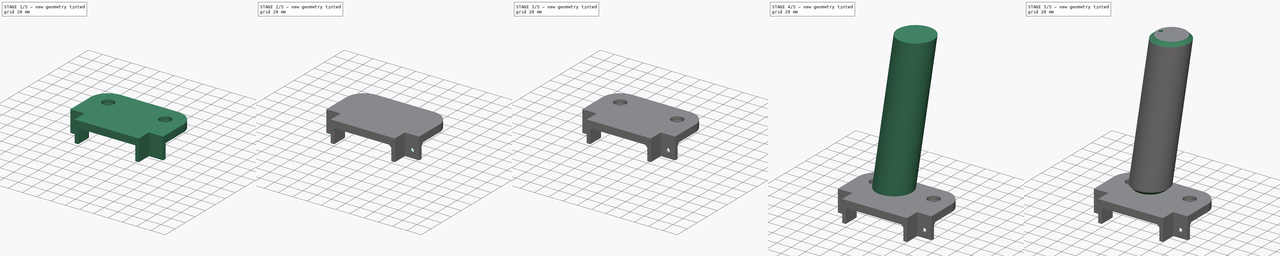
[diagram: build sequence overview — one tinted view per stage of 5, left to right]
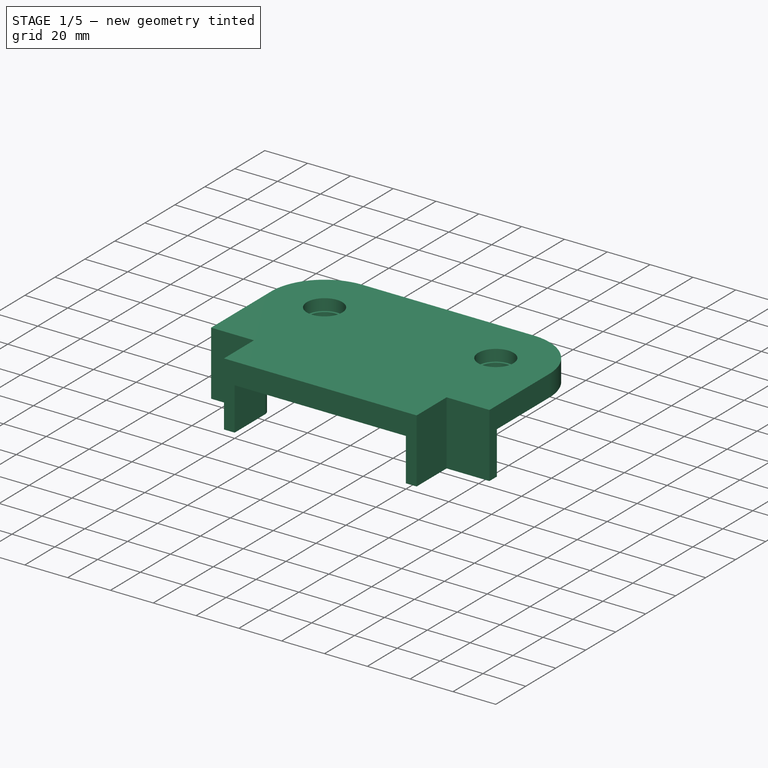
[diagram: stage 1 of 5 — iso view after this stage's code; geometry added in this stage tinted green]
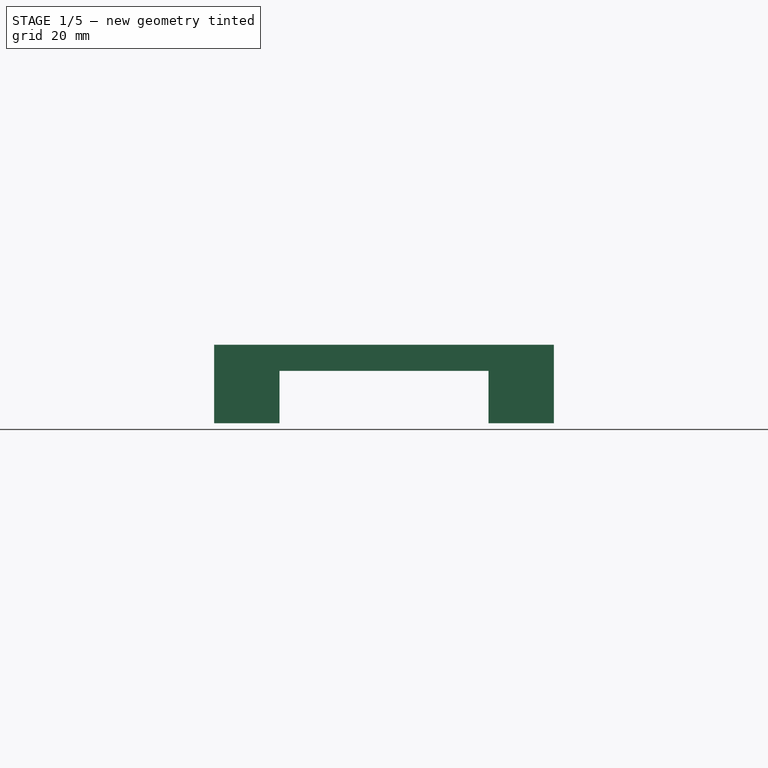
[diagram: stage 1 of 5 — front view after this stage's code; geometry added in this stage tinted green]
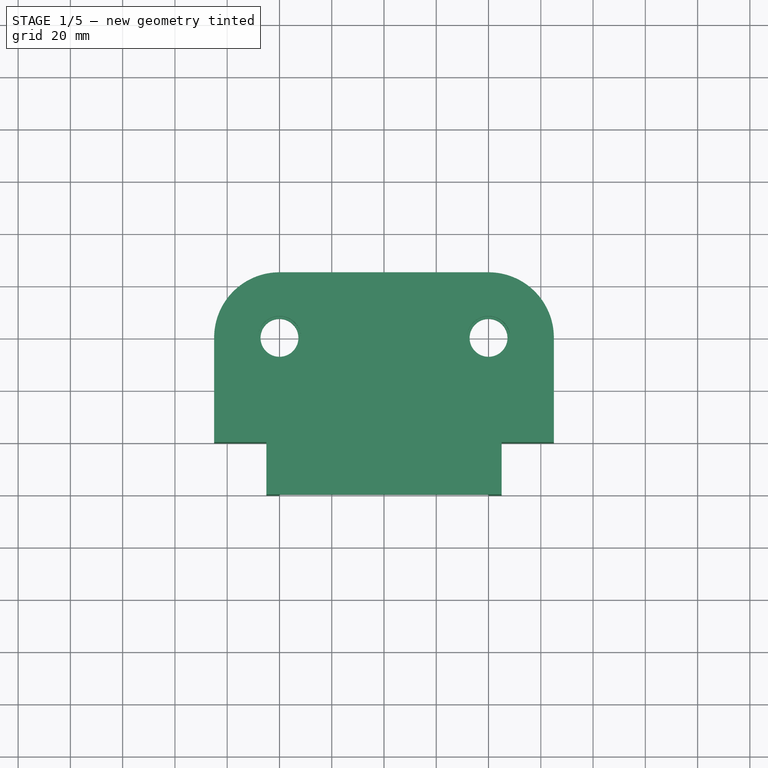
[diagram: stage 1 of 5 — top view after this stage's code; geometry added in this stage tinted green]
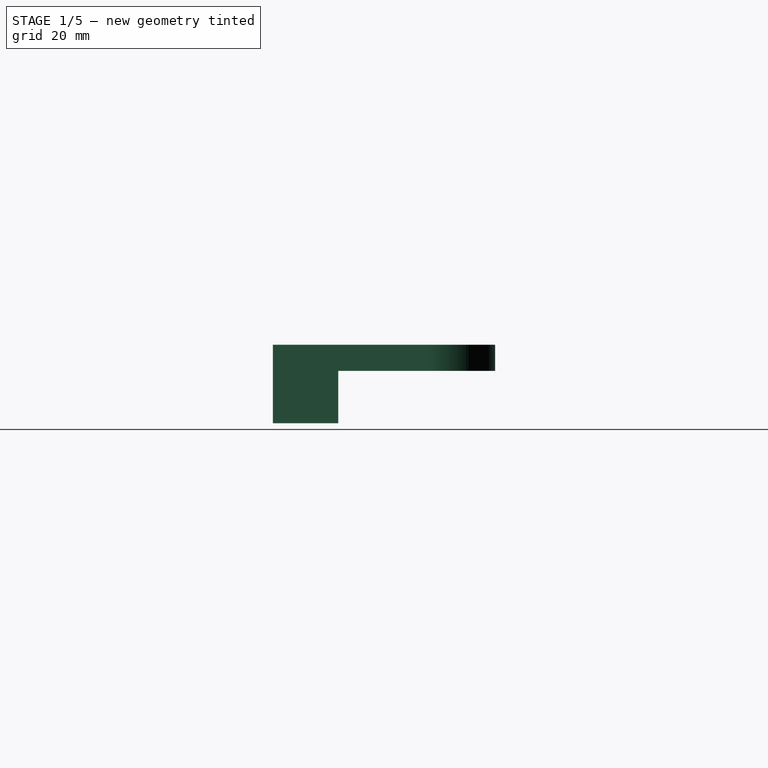
[diagram: stage 1 of 5 — right view after this stage's code; geometry added in this stage tinted green]
FCSTD DOCUMENT  (FreeCAD 0.19R24276 (Git))
Label: resin_shaker
License: All rights reserved
LicenseURL: http://en.wikipedia.org/wiki/All_rights_reserved
objects: Sketcher::SketchObject×15, PartDesign::Pad×6, PartDesign::Body×5, PartDesign::Hole×5, PartDesign::Chamfer×3, PartDesign::Pocket×2, PartDesign::FeatureBase×1
note: 53 computed .brp shape members not serialized (recipe doc carries the construction recipe); baked Part::Feature solids carry a one-line shape summary decoded from their .brp

FEATURE [Sketcher::SketchObject] Sketch008
  ExternalGeometry = -> [Chamfer001]
  FullyConstrained = false
  MapMode = 5
  Placement = pos=(0,0,-10) rot=(1,0,0;3.14159rad)
  Support = -> [Chamfer001]
  sketch-geometry (6):
    g0: ArcOfCircle CenterX=-40 CenterY=1.5e-15 CenterZ=0 NormalX=0 NormalY=0 NormalZ=1 AngleXU=0 Radius=6 StartAngle=2.24736 EndAngle=4.71239
    g1: ArcOfCircle CenterX=40 CenterY=0 CenterZ=0 NormalX=0 NormalY=0 NormalZ=1 AngleXU=0 Radius=6 StartAngle=4.71239 EndAngle=7.17742
    g2: LineSegment StartX=-40 StartY=-6 StartZ=0 EndX=40 EndY=-6 EndZ=0
    g3: ArcOfCircle CenterX=0 CenterY=32.1199 CenterZ=0 NormalX=0 NormalY=0 NormalZ=1 AngleXU=0 Radius=6 StartAngle=0.89423 EndAngle=2.24736
    g4: LineSegment StartX=-43.7567 StartY=4.67836 StartZ=0 EndX=-3.75672 EndY=36.7983 EndZ=0
    g5: LineSegment StartX=3.75672 StartY=36.7983 StartZ=0 EndX=43.7567 EndY=4.67836 EndZ=0
  constraints (13):
    c: Coincident(g0,g-3)
    c: Coincident(g1,g-4)
    c: Horizontal(g2)
    c: Tangent(g2,g0) = -1.5708
    c: Tangent(g2,g1) = -1.5708
    c: Diameter(g0) = 12
    c: PointOnObject(g3,g-2)
    c: Tangent(g5,g1) = 1.5708
    c: Tangent(g5,g3) = 1.5708
    c: Tangent(g4,g3) = 1.5708
    c: Tangent(g4,g0) = 1.5708
    c: Equal(g3,g1)
    c: Distance(g3,g1) = 51.3
FEATURE [PartDesign::Body] Body003  label="Side001"
  Group = -> [Sketch004,Pad002,Sketch005,Hole001,Sketch006,Pad003,Sketch007,Hole002,Chamfer001,Sketch008]
  Origin = -> Origin003
  Placement = pos=(0,0,220) rot=(0,1,0;3.14159rad)
  Tip = -> Chamfer001
FEATURE [Sketcher::SketchObject] Sketch009
  FullyConstrained = false
  MapMode = 5
  Placement = pos=(0,0,0) rot=(0,1,0;3.14159rad)
  Support = -> [XY_Plane004]
  sketch-geometry (14):
    g0: Circle CenterX=40 CenterY=-1.5e-15 CenterZ=0 NormalX=0 NormalY=0 NormalZ=1 AngleXU=0 Radius=8
    g1: LineSegment StartX=-40 StartY=25 StartZ=0 EndX=40 EndY=25 EndZ=0
    g2: LineSegment StartX=65 StartY=-1.5e-15 StartZ=0 EndX=65 EndY=-40 EndZ=0
    g3: LineSegment StartX=-65 StartY=-40 StartZ=0 EndX=-65 EndY=7.603e-13 EndZ=0
    g4: Circle CenterX=-40 CenterY=0 CenterZ=0 NormalX=0 NormalY=0 NormalZ=1 AngleXU=0 Radius=8
    g5: ArcOfCircle CenterX=-40 CenterY=0 CenterZ=0 NormalX=0 NormalY=0 NormalZ=1 AngleXU=0 Radius=25 StartAngle=1.5708 EndAngle=3.14159
    g6: ArcOfCircle CenterX=40 CenterY=-1.5e-15 CenterZ=0 NormalX=0 NormalY=0 NormalZ=1 AngleXU=0 Radius=25 StartAngle=0 EndAngle=1.5708
    g7: LineSegment StartX=-65 StartY=-40 StartZ=0 EndX=0 EndY=0 EndZ=0
    g8: LineSegment StartX=0 StartY=0 StartZ=0 EndX=65 EndY=-40 EndZ=0
    g9: LineSegment StartX=-65 StartY=-40 StartZ=0 EndX=-45 EndY=-40 EndZ=0
    g10: LineSegment StartX=-45 StartY=-40 StartZ=0 EndX=-45 EndY=-60 EndZ=0
    g11: LineSegment StartX=-45 StartY=-60 StartZ=0 EndX=45 EndY=-60 EndZ=0
    g12: LineSegment StartX=45 StartY=-60 StartZ=0 EndX=45 EndY=-40 EndZ=0
    g13: LineSegment StartX=45 StartY=-40 StartZ=0 EndX=65 EndY=-40 EndZ=0
  constraints (36):
    c: Horizontal(g1)
    c: Vertical(g2)
    c: Vertical(g3)
    c: PointOnObject(g4,g-1)
    c: Tangent(g1,g5) = 1.5708
    c: Tangent(g3,g5) = 1.5708
    c: Tangent(g2,g6) = 1.5708
    c: Diameter(g4) = 16
    c: Equal(g4,g0)
    c: Coincident(g5,g4)
    c: Coincident(g6,g0)
    c: Equal(g5,g6)
    c: Diameter(g6) = 50
    c: DistanceX(g4,g0) = 80
    c: Tangent(g6,g1) = 1.5708
    c: Coincident(g7,g-1)
    c: Coincident(g7,g8)
    c: Coincident(g8,g2)
    c: Equal(g8,g7)
    c: DistanceY(g3,g3) = 40
    c: Coincident(g3,g9)
    c: Horizontal(g9)
    c: Coincident(g9,g10)
    c: Vertical(g10)
    c: Coincident(g10,g11)
    c: Horizontal(g11)
    c: Coincident(g11,g12)
    c: Vertical(g12)
    c: Coincident(g12,g13)
    c: Coincident(g13,g2)
    c: Horizontal(g13)
    c: Equal(g13,g12)
    c: Equal(g12,g10)
    c: Equal(g10,g9)
    c: Coincident(g7,g3)
    c: DistanceY(g10,g10) = 20
FEATURE [PartDesign::Pad] Pad004
  Direction = (1,1,1)
  Length = 10
  Length2 = 100
  Profile = -> Sketch009
  Type = 0
FEATURE [Sketcher::SketchObject] Sketch010
  ExternalGeometry = -> [Pad004]
  FullyConstrained = false
  MapMode = 5
  Support = -> [Pad004]
  sketch-geometry (2):
    g0: Circle CenterX=40 CenterY=0 CenterZ=0 NormalX=0 NormalY=0 NormalZ=1 AngleXU=0 Radius=8
    g1: Circle CenterX=-40 CenterY=-1.5e-15 CenterZ=0 NormalX=0 NormalY=0 NormalZ=1 AngleXU=0 Radius=8
  constraints (4):
    c: Coincident(g1,g-3)
    c: Diameter(g1) = 16
    c: Equal(g1,g0)
    c: Coincident(g0,g-5)
FEATURE [PartDesign::Hole] Hole003
  BaseFeature = -> Pad004
  Depth = 25
  DepthType = 0
  Diameter = 14.5
  DrillForDepth = false
  DrillPoint = 1
  DrillPointAngle = 118
  HoleCutCountersinkAngle = 90
  HoleCutCustomValues = false
  HoleCutDepth = 5.4
  HoleCutDiameter = 16.5
  HoleCutType = 1
  ModelActualThread = false
  Profile = -> Sketch010
  Tapered = false
  TaperedAngle = 90
  ThreadAngle = 0
  ThreadClass = 0
  ThreadCutOffInner = 0
  ThreadCutOffOuter = 0
  ThreadDirection = 0
  ThreadFit = 0
  ThreadPitch = 0
  ThreadSize = 0
  ThreadType = 0
  Threaded = false
FEATURE [Sketcher::SketchObject] Sketch011
  ExternalGeometry = -> [Hole003]
  FullyConstrained = false
  MapMode = 5
  Placement = pos=(0,0,-10) rot=(1,0,0;3.14159rad)
  Support = -> [Hole003]
  sketch-geometry (14):
    g0: LineSegment StartX=-65 StartY=40 StartZ=0 EndX=-65 EndY=35 EndZ=0
    g1: LineSegment StartX=-65 StartY=35 StartZ=0 EndX=-45 EndY=35 EndZ=0
    g2: LineSegment StartX=-40 StartY=40 StartZ=0 EndX=-40 EndY=60 EndZ=0
    g3: LineSegment StartX=-40 StartY=60 StartZ=0 EndX=-45 EndY=60 EndZ=0
    g4: LineSegment StartX=-45 StartY=60 StartZ=0 EndX=-45 EndY=40 EndZ=0
    g5: LineSegment StartX=-45 StartY=40 StartZ=0 EndX=-65 EndY=40 EndZ=0
    g6: LineSegment StartX=45 StartY=60 StartZ=0 EndX=40 EndY=60 EndZ=0
    g7: LineSegment StartX=40 StartY=60 StartZ=0 EndX=40 EndY=40 EndZ=0
    g8: LineSegment StartX=45 StartY=35 StartZ=0 EndX=65 EndY=35 EndZ=0
    g9: LineSegment StartX=65 StartY=35 StartZ=0 EndX=65 EndY=40 EndZ=0
    g10: LineSegment StartX=65 StartY=40 StartZ=0 EndX=45 EndY=40 EndZ=0
    g11: LineSegment StartX=45 StartY=40 StartZ=0 EndX=45 EndY=60 EndZ=0
    g12: ArcOfCircle CenterX=-45 CenterY=40 CenterZ=0 NormalX=0 NormalY=0 NormalZ=1 AngleXU=0 Radius=5 StartAngle=4.71239 EndAngle=6.28319
    g13: ArcOfCircle CenterX=45 CenterY=40 CenterZ=0 NormalX=0 NormalY=0 NormalZ=1 AngleXU=0 Radius=5 StartAngle=3.14159 EndAngle=4.71239
  constraints (32):
    c: Coincident(g-4,g0)
    c: Vertical(g0)
    c: Coincident(g0,g1)
    c: Horizontal(g1)
    c: Vertical(g2)
    c: Coincident(g2,g3)
    c: Coincident(g3,g-3)
    c: Coincident(g3,g4)
    c: Coincident(g4,g-4)
    c: Coincident(g4,g5)
    c: Coincident(g5,g0)
    c: Coincident(g-5,g6)
    c: Horizontal(g6)
    c: Coincident(g6,g7)
    c: Vertical(g7)
    c: Horizontal(g8)
    c: Coincident(g8,g9)
    c: Coincident(g9,g-6)
    c: Coincident(g9,g10)
    c: Coincident(g10,g-6)
    c: Coincident(g10,g11)
    c: Coincident(g11,g6)
    c: Vertical(g9)
    c: Horizontal(g3)
    c: Tangent(g1,g12) = -1.5708
    c: Tangent(g2,g12) = -1.5708
    c: Tangent(g7,g13) = -1.5708
    c: Tangent(g8,g13) = -1.5708
    c: Coincident(g10,g13)
    c: Coincident(g4,g12)
    c: Equal(g3,g6)
    c: DistanceX(g3,g3) = 5
FEATURE [PartDesign::Pad] Pad005
  BaseFeature = -> Hole003
  Direction = (1,1,1)
  Length = 20
  Length2 = 100
  Profile = -> Sketch011
  Type = 0
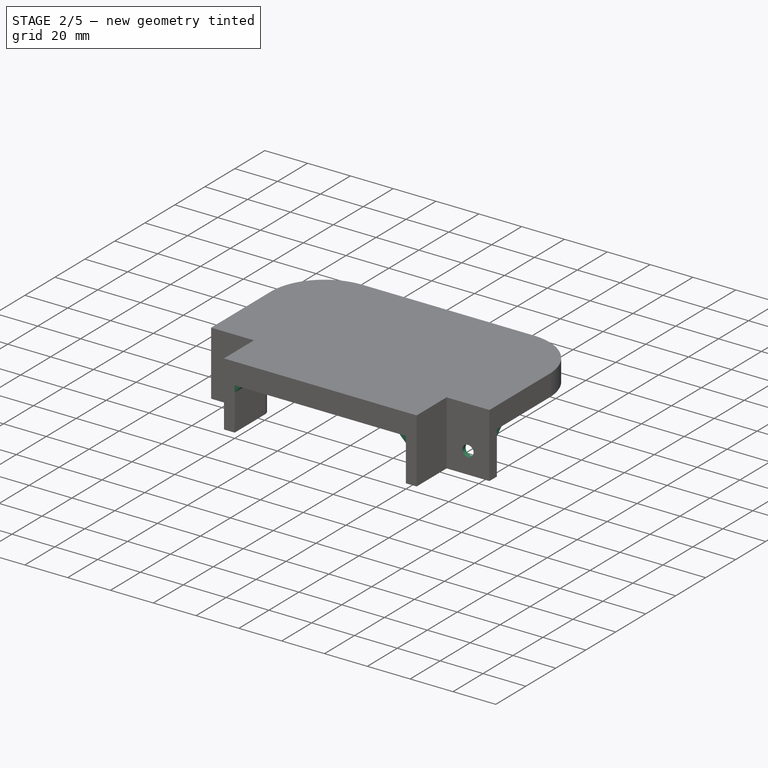
[diagram: stage 2 of 5 — iso view after this stage's code; geometry added in this stage tinted green]
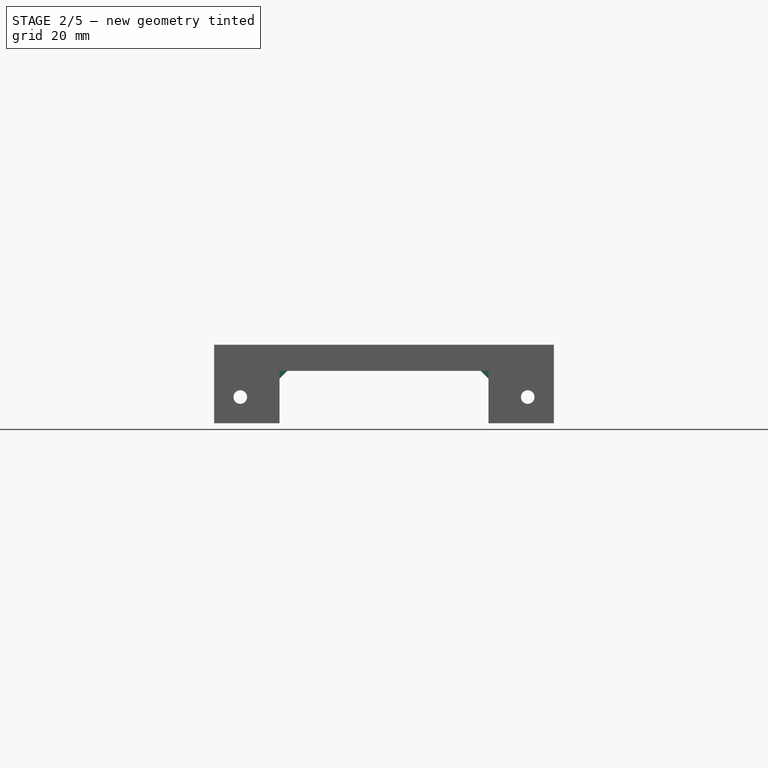
[diagram: stage 2 of 5 — front view after this stage's code; geometry added in this stage tinted green]
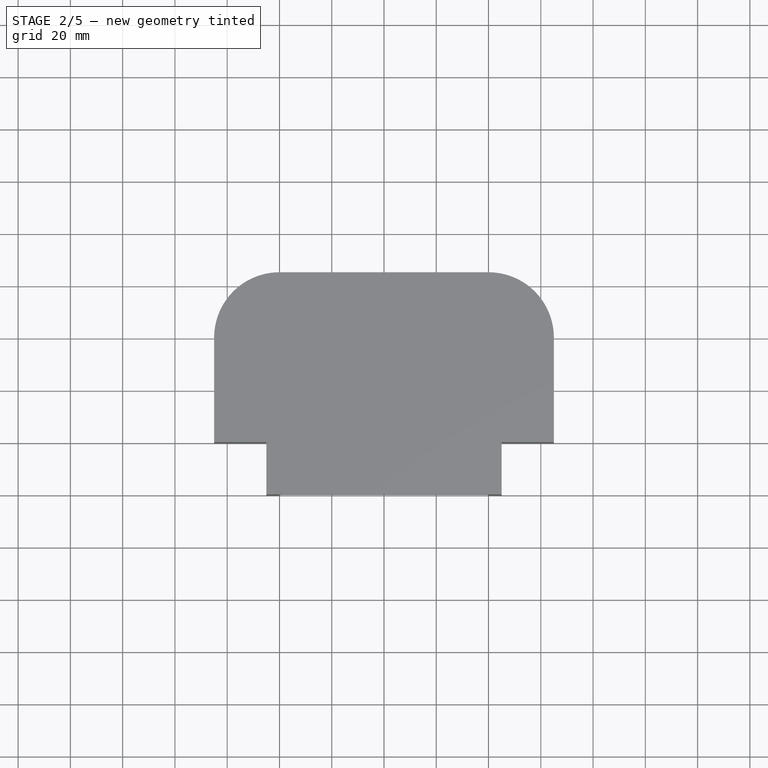
[diagram: stage 2 of 5 — top view after this stage's code; geometry added in this stage tinted green]
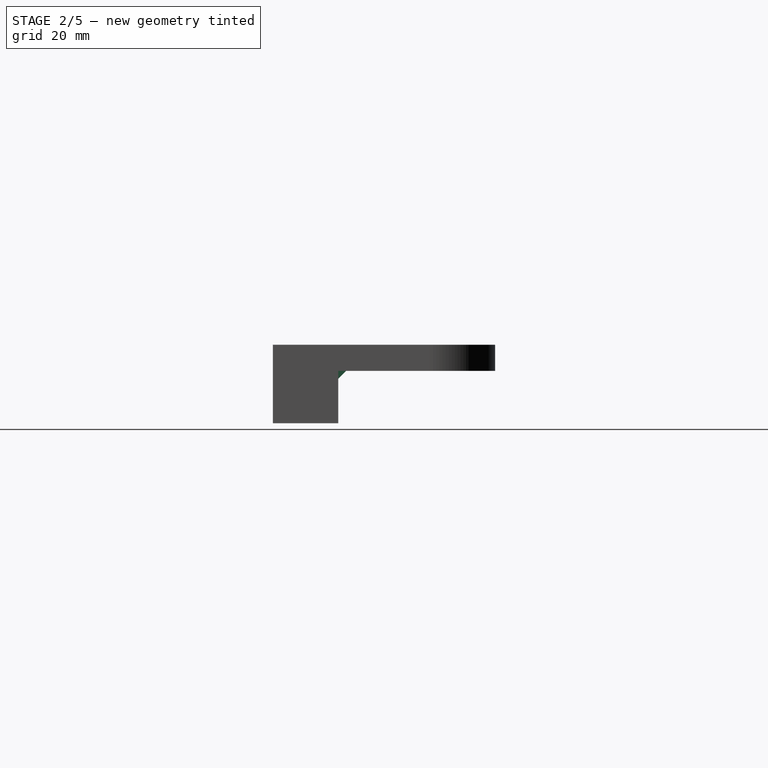
[diagram: stage 2 of 5 — right view after this stage's code; geometry added in this stage tinted green]
FEATURE [PartDesign::Body] Body001  label="Side"
  Group = -> [Sketch002,Pad001,Sketch003,Hole]
  Origin = -> Origin001
  Tip = -> Hole
FEATURE [Sketcher::SketchObject] Sketch004
  FullyConstrained = false
  MapMode = 5
  Placement = pos=(0,0,0) rot=(0,1,0;3.14159rad)
  Support = -> [XY_Plane003]
  sketch-geometry (14):
    g0: Circle CenterX=40 CenterY=-1.5e-15 CenterZ=0 NormalX=0 NormalY=0 NormalZ=1 AngleXU=0 Radius=8
    g1: LineSegment StartX=-40 StartY=25 StartZ=0 EndX=40 EndY=25 EndZ=0
    g2: LineSegment StartX=65 StartY=-1.5e-15 StartZ=0 EndX=65 EndY=-40 EndZ=0
    g3: LineSegment StartX=-65 StartY=-40 StartZ=0 EndX=-65 EndY=7.603e-13 EndZ=0
    g4: Circle CenterX=-40 CenterY=0 CenterZ=0 NormalX=0 NormalY=0 NormalZ=1 AngleXU=0 Radius=8
    g5: ArcOfCircle CenterX=-40 CenterY=0 CenterZ=0 NormalX=0 NormalY=0 NormalZ=1 AngleXU=0 Radius=25 StartAngle=1.5708 EndAngle=3.14159
    g6: ArcOfCircle CenterX=40 CenterY=-1.5e-15 CenterZ=0 NormalX=0 NormalY=0 NormalZ=1 AngleXU=0 Radius=25 StartAngle=0 EndAngle=1.5708
    g7: LineSegment StartX=-65 StartY=-40 StartZ=0 EndX=0 EndY=0 EndZ=0
    g8: LineSegment StartX=0 StartY=0 StartZ=0 EndX=65 EndY=-40 EndZ=0
    g9: LineSegment StartX=-65 StartY=-40 StartZ=0 EndX=-45 EndY=-40 EndZ=0
    g10: LineSegment StartX=-45 StartY=-40 StartZ=0 EndX=-45 EndY=-60 EndZ=0
    g11: LineSegment StartX=-45 StartY=-60 StartZ=0 EndX=45 EndY=-60 EndZ=0
    g12: LineSegment StartX=45 StartY=-60 StartZ=0 EndX=45 EndY=-40 EndZ=0
    g13: LineSegment StartX=45 StartY=-40 StartZ=0 EndX=65 EndY=-40 EndZ=0
  constraints (36):
    c: Horizontal(g1)
    c: Vertical(g2)
    c: Vertical(g3)
    c: PointOnObject(g4,g-1)
    c: Tangent(g1,g5) = 1.5708
    c: Tangent(g3,g5) = 1.5708
    c: Tangent(g2,g6) = 1.5708
    c: Diameter(g4) = 16
    c: Equal(g4,g0)
    c: Coincident(g5,g4)
    c: Coincident(g6,g0)
    c: Equal(g5,g6)
    c: Diameter(g6) = 50
    c: DistanceX(g4,g0) = 80
    c: Tangent(g6,g1) = 1.5708
    c: Coincident(g7,g-1)
    c: Coincident(g7,g8)
    c: Coincident(g8,g2)
    c: Equal(g8,g7)
    c: DistanceY(g3,g3) = 40
    c: Coincident(g3,g9)
    c: Horizontal(g9)
    c: Coincident(g9,g10)
    c: Vertical(g10)
    c: Coincident(g10,g11)
    c: Horizontal(g11)
    c: Coincident(g11,g12)
    c: Vertical(g12)
    c: Coincident(g12,g13)
    c: Coincident(g13,g2)
    c: Horizontal(g13)
    c: Equal(g13,g12)
    c: Equal(g12,g10)
    c: Equal(g10,g9)
    c: Coincident(g7,g3)
    c: DistanceY(g10,g10) = 20
FEATURE [PartDesign::Pad] Pad002
  Direction = (1,1,1)
  Length = 10
  Length2 = 100
  Profile = -> Sketch004
  Type = 0
FEATURE [Sketcher::SketchObject] Sketch012
  ExternalGeometry = -> [Pad005]
  FullyConstrained = false
  MapMode = 5
  Placement = pos=(0,-35,0) rot=(0,0.707107,0.707107;3.14159rad)
  Support = -> [Pad005]
  sketch-geometry (9):
    g0: Circle CenterX=-55 CenterY=-20 CenterZ=0 NormalX=0 NormalY=0 NormalZ=1 AngleXU=0 Radius=5
    g1: Circle CenterX=55 CenterY=-20 CenterZ=0 NormalX=0 NormalY=0 NormalZ=1 AngleXU=0 Radius=5
    g2: LineSegment StartX=65 StartY=-10 StartZ=0 EndX=55 EndY=-20 EndZ=0
    g3: LineSegment StartX=55 StartY=-20 StartZ=0 EndX=65 EndY=-30 EndZ=0
    g4: LineSegment StartX=65 StartY=-30 StartZ=0 EndX=55 EndY=-20 EndZ=0
    g5: LineSegment StartX=55 StartY=-20 StartZ=0 EndX=45 EndY=-30 EndZ=0
    g6: LineSegment StartX=-45 StartY=-30 StartZ=0 EndX=-55 EndY=-20 EndZ=0
    g7: LineSegment StartX=-55 StartY=-20 StartZ=0 EndX=-65 EndY=-10 EndZ=0
    g8: LineSegment StartX=-65 StartY=-30 StartZ=0 EndX=-55 EndY=-20 EndZ=0
  constraints (20):
    c: Coincident(g-3,g2)
    c: Coincident(g2,g1)
    c: Coincident(g2,g3)
    c: Coincident(g3,g-4)
    c: Coincident(g3,g4)
    c: Coincident(g4,g1)
    c: Coincident(g4,g5)
    c: Coincident(g5,g-4)
    c: Coincident(g-5,g6)
    c: Coincident(g6,g0)
    c: Coincident(g6,g7)
    c: Coincident(g7,g-6)
    c: Coincident(g-6,g8)
    c: Coincident(g8,g0)
    c: Equal(g6,g8)
    c: Equal(g8,g7)
    c: Equal(g5,g3)
    c: Equal(g3,g2)
    c: Equal(g1,g0)
    c: Diameter(g0) = 10
FEATURE [PartDesign::Hole] Hole004
  BaseFeature = -> Pad005
  Depth = 25
  DepthType = 0
  Diameter = 5.2
  DrillForDepth = false
  DrillPoint = 1
  DrillPointAngle = 118
  HoleCutCountersinkAngle = 90
  HoleCutCustomValues = false
  HoleCutDepth = 0.4
  HoleCutDiameter = 11
  HoleCutType = 2
  ModelActualThread = false
  Profile = -> Sketch012
  Tapered = false
  TaperedAngle = 90
  ThreadAngle = 0
  ThreadClass = 0
  ThreadCutOffInner = 0
  ThreadCutOffOuter = 0
  ThreadDirection = 0
  ThreadFit = 0
  ThreadPitch = 0
  ThreadSize = 0
  ThreadType = 0
  Threaded = false
FEATURE [PartDesign::Chamfer] Chamfer002
  Angle = 45
  Base = -> Hole004 [Edge25,Edge29]
  BaseFeature = -> Hole004
  ChamferType = 0
  FlipDirection = false
  Size = 3
  Size2 = 1
  SupportTransform = false
FEATURE [Sketcher::SketchObject] Sketch013
  ExternalGeometry = -> [Chamfer002]
  FullyConstrained = false
  MapMode = 5
  Placement = pos=(0,0,-10) rot=(1,0,0;3.14159rad)
  Support = -> [Chamfer002]
  sketch-geometry (6):
    g0: ArcOfCircle CenterX=-40 CenterY=1.5e-15 CenterZ=0 NormalX=0 NormalY=0 NormalZ=1 AngleXU=0 Radius=6 StartAngle=2.24736 EndAngle=4.71239
    g1: ArcOfCircle CenterX=40 CenterY=0 CenterZ=0 NormalX=0 NormalY=0 NormalZ=1 AngleXU=0 Radius=6 StartAngle=4.71239 EndAngle=7.17742
    g2: LineSegment StartX=-40 StartY=-6 StartZ=0 EndX=40 EndY=-6 EndZ=0
    g3: ArcOfCircle CenterX=0 CenterY=32.1199 CenterZ=0 NormalX=0 NormalY=0 NormalZ=1 AngleXU=0 Radius=6 StartAngle=0.89423 EndAngle=2.24736
    g4: LineSegment StartX=-43.7567 StartY=4.67836 StartZ=0 EndX=-3.75672 EndY=36.7983 EndZ=0
    g5: LineSegment StartX=3.75672 StartY=36.7983 StartZ=0 EndX=43.7567 EndY=4.67836 EndZ=0
  constraints (13):
    c: Coincident(g0,g-3)
    c: Coincident(g1,g-4)
    c: Horizontal(g2)
    c: Tangent(g2,g0) = -1.5708
    c: Tangent(g2,g1) = -1.5708
    c: Diameter(g0) = 12
    c: PointOnObject(g3,g-2)
    c: Tangent(g5,g1) = 1.5708
    c: Tangent(g5,g3) = 1.5708
    c: Tangent(g4,g3) = 1.5708
    c: Tangent(g4,g0) = 1.5708
    c: Equal(g3,g1)
    c: Distance(g3,g1) = 51.3
FEATURE [Sketcher::SketchObject] Sketch014
  FullyConstrained = true
  MapMode = 5
  Support = -> [Chamfer002]
  sketch-geometry (34):
    g0: ArcOfCircle CenterX=0 CenterY=-33 CenterZ=0 NormalX=0 NormalY=0 NormalZ=1 AngleXU=0 Radius=12 StartAngle=3.14159 EndAngle=6.28319
    g1: ArcOfCircle CenterX=4e-16 CenterY=-28 CenterZ=0 NormalX=0 NormalY=0 NormalZ=1 AngleXU=0 Radius=12 StartAngle=1e-16 EndAngle=3.14159
    g2: LineSegment StartX=12 StartY=-33 StartZ=0 EndX=12 EndY=-28 EndZ=0
    g3: LineSegment StartX=-12 StartY=-33 StartZ=0 EndX=-12 EndY=-28 EndZ=0
    g4: ArcOfCircle CenterX=15.5 CenterY=-17.5 CenterZ=0 NormalX=0 NormalY=0 NormalZ=1 AngleXU=0 Radius=1.5 StartAngle=3.14159 EndAngle=6.28319
    g5: ArcOfCircle CenterX=15.5 CenterY=-12.5 CenterZ=0 NormalX=0 NormalY=0 NormalZ=1 AngleXU=0 Radius=1.5 StartAngle=0 EndAngle=3.14159
    g6: LineSegment StartX=17 StartY=-17.5 StartZ=0 EndX=17 EndY=-12.5 EndZ=0
    g7: LineSegment StartX=14 StartY=-17.5 StartZ=0 EndX=14 EndY=-12.5 EndZ=0
    g8: ArcOfCircle CenterX=15.5 CenterY=-48.5 CenterZ=0 NormalX=0 NormalY=0 NormalZ=1 AngleXU=0 Radius=1.5 StartAngle=3.14159 EndAngle=6.28319
    g9: ArcOfCircle CenterX=15.5 CenterY=-43.5 CenterZ=0 NormalX=0 NormalY=0 NormalZ=1 AngleXU=0 Radius=1.5 StartAngle=-1.8e-15 EndAngle=3.14159
    g10: LineSegment StartX=17 StartY=-48.5 StartZ=0 EndX=17 EndY=-43.5 EndZ=0
    g11: LineSegment StartX=14 StartY=-48.5 StartZ=0 EndX=14 EndY=-43.5 EndZ=0
    g12: ArcOfCircle CenterX=-15.5 CenterY=-17.5 CenterZ=0 NormalX=0 NormalY=0 NormalZ=1 AngleXU=0 Radius=1.5 StartAngle=3.14159 EndAngle=6.28319
    g13: ArcOfCircle CenterX=-15.5 CenterY=-12.5 CenterZ=0 NormalX=0 NormalY=0 NormalZ=1 AngleXU=0 Radius=1.5 StartAngle=0 EndAngle=3.14159
    g14: LineSegment StartX=-14 StartY=-17.5 StartZ=0 EndX=-14 EndY=-12.5 EndZ=0
    g15: LineSegment StartX=-17 StartY=-17.5 StartZ=0 EndX=-17 EndY=-12.5 EndZ=0
    g16: ArcOfCircle CenterX=-15.5 CenterY=-48.5 CenterZ=0 NormalX=0 NormalY=0 NormalZ=1 AngleXU=0 Radius=1.5 StartAngle=3.14159 EndAngle=6.28319
    g17: ArcOfCircle CenterX=-15.5 CenterY=-43.5 CenterZ=0 NormalX=0 NormalY=0 NormalZ=1 AngleXU=0 Radius=1.5 StartAngle=1.7e-15 EndAngle=3.14159
    g18: LineSegment StartX=-14 StartY=-48.5 StartZ=0 EndX=-14 EndY=-43.5 EndZ=0
    g19: LineSegment StartX=-17 StartY=-48.5 StartZ=0 EndX=-17 EndY=-43.5 EndZ=0
    g20: LineSegment StartX=-15.5 StartY=-12.5 StartZ=0 EndX=-15.5 EndY=-17.5 EndZ=0
    g21: LineSegment StartX=15.5 StartY=-12.5 StartZ=0 EndX=15.5 EndY=-17.5 EndZ=0
    g22: LineSegment StartX=15.5 StartY=-43.5 StartZ=0 EndX=15.5 EndY=-48.5 EndZ=0
    g23: LineSegment StartX=-15.5 StartY=-48.5 StartZ=0 EndX=-15.5 EndY=-43.5 EndZ=0
    g24: LineSegment StartX=-15.5 StartY=-12.5 StartZ=0 EndX=0 EndY=-15 EndZ=0
    g25: LineSegment StartX=0 StartY=-15 StartZ=0 EndX=-15.5 EndY=-17.5 EndZ=0
    g26: LineSegment StartX=0 StartY=-15 StartZ=0 EndX=15.5 EndY=-12.5 EndZ=0
    g27: LineSegment StartX=15.5 StartY=-17.5 StartZ=0 EndX=0 EndY=-15 EndZ=0
    g28: LineSegment StartX=-15.5 StartY=-43.5 StartZ=0 EndX=0 EndY=-46 EndZ=0
    g29: LineSegment StartX=-15.5 StartY=-48.5 StartZ=0 EndX=0 EndY=-46 EndZ=0
    g30: LineSegment StartX=0 StartY=-46 StartZ=0 EndX=15.5 EndY=-43.5 EndZ=0
    g31: LineSegment StartX=15.5 StartY=-48.5 StartZ=0 EndX=0 EndY=-46 EndZ=0
    g32: LineSegment StartX=0 StartY=-33 StartZ=0 EndX=0 EndY=-46 EndZ=0
    g33: LineSegment StartX=4e-16 StartY=-28 StartZ=0 EndX=0 EndY=-15 EndZ=0
  constraints (80):
    c: Tangent(g0,g3) = 1.5708
    c: Tangent(g0,g2) = -1.5708
    c: Tangent(g2,g1) = -1.5708
    c: Tangent(g3,g1) = 1.5708
    c: Vertical(g2)
    c: Equal(g0,g1)
    c: PointOnObject(g0,g-2)
    c: Diameter(g0) = 24
    c: DistanceY(g0,g1) = 5
    c: Tangent(g4,g7) = 1.5708
    c: Tangent(g4,g6) = -1.5708
    c: Tangent(g6,g5) = -1.5708
    c: Tangent(g7,g5) = 1.5708
    c: Vertical(g6)
    c: Equal(g4,g5)
    c: Tangent(g8,g11) = 1.5708
    c: Tangent(g8,g10) = -1.5708
    c: Tangent(g10,g9) = -1.5708
    c: Tangent(g11,g9) = 1.5708
    c: Vertical(g10)
    c: Equal(g8,g9)
    c: Tangent(g12,g15) = 1.5708
    c: Tangent(g12,g14) = -1.5708
    c: Tangent(g14,g13) = -1.5708
    c: Tangent(g15,g13) = 1.5708
    c: Vertical(g14)
    c: Equal(g12,g13)
    c: Tangent(g16,g19) = 1.5708
    c: Tangent(g16,g18) = -1.5708
    c: Tangent(g18,g17) = -1.5708
    c: Tangent(g19,g17) = 1.5708
    c: Vertical(g18)
    c: Equal(g16,g17)
    c: Coincident(g20,g13)
    c: Coincident(g20,g12)
    c: Coincident(g21,g5)
    c: Coincident(g21,g4)
    c: Coincident(g22,g9)
    c: Coincident(g22,g8)
    c: Coincident(g23,g16)
    c: Coincident(g23,g17)
    c: Coincident(g24,g13)
    c: PointOnObject(g24,g-2)
    c: Coincident(g24,g25)
    c: Coincident(g25,g12)
    c: Coincident(g26,g24)
    c: Coincident(g26,g5)
    c: Coincident(g27,g4)
    c: Coincident(g27,g24)
    c: Coincident(g28,g17)
    c: PointOnObject(g28,g-2)
    c: Coincident(g29,g16)
    c: Coincident(g29,g28)
    c: Coincident(g30,g28)
    c: Coincident(g30,g9)
    c: Coincident(g31,g8)
    c: Coincident(g31,g28)
    c: Coincident(g32,g0)
    c: Coincident(g32,g28)
    c: Coincident(g33,g1)
    c: Coincident(g33,g24)
    c: Equal(g33,g32)
    c: Equal(g22,g21)
    c: Equal(g21,g20)
    c: Equal(g20,g23)
    c: DistanceY(g20,g20) = 5
    c: Diameter(g16) = 3
    c: Equal(g16,g12)
    c: Equal(g16,g4)
    c: Equal(g16,g8)
    c: Equal(g29,g28)
    c: Equal(g28,g30)
    c: Equal(g30,g31)
    c: Equal(g31,g26)
    c: Equal(g26,g27)
    c: Equal(g27,g24)
    c: Equal(g24,g25)
    c: DistanceX(g16,g8) = 31
    c: DistanceY(g28,g24) = 31
    c: DistanceY(g24,g-1) = 15
FEATURE [PartDesign::Pocket] Pocket001
  BaseFeature = -> Chamfer002
  Length = 5
  Length2 = 100
  Profile = -> Sketch014
  Type = 1
FEATURE [PartDesign::Body] Body004  label="Side002"
  Group = -> [Sketch009,Pad004,Sketch010,Hole003,Sketch011,Pad005,Sketch012,Hole004,Chamfer002,Sketch013,Sketch014,Pocket001]
  Origin = -> Origin004
  Placement = pos=(0,0,300) rot=(0,1,0;0rad)
  Tip = -> Pocket001
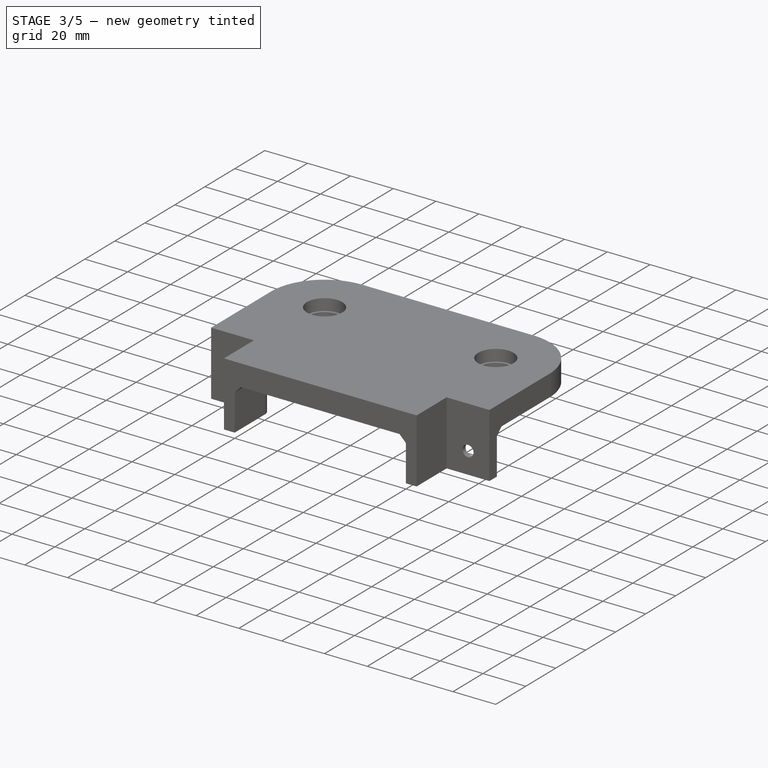
[diagram: stage 3 of 5 — iso view after this stage's code; geometry added in this stage tinted green]
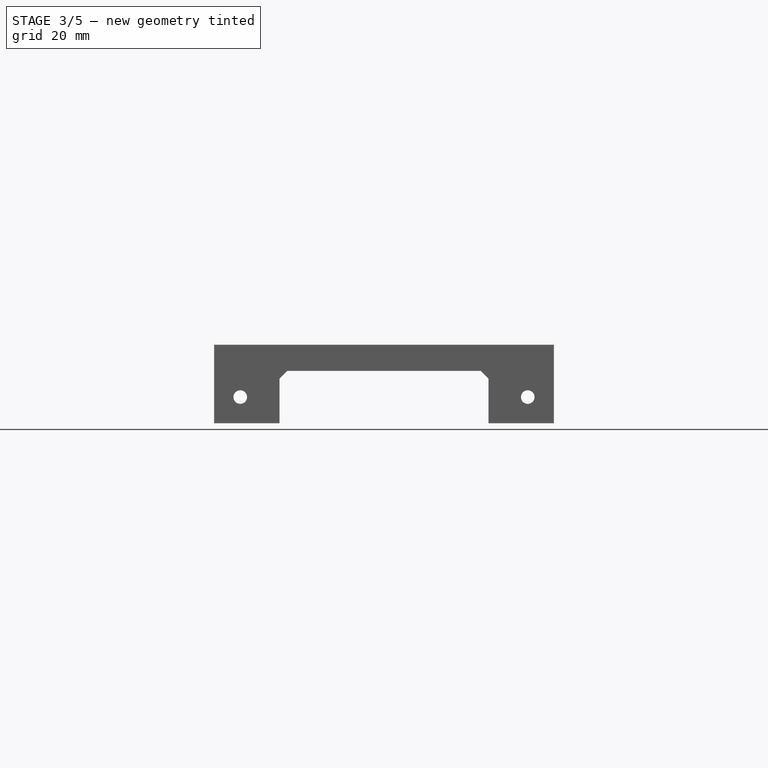
[diagram: stage 3 of 5 — front view after this stage's code; geometry added in this stage tinted green]
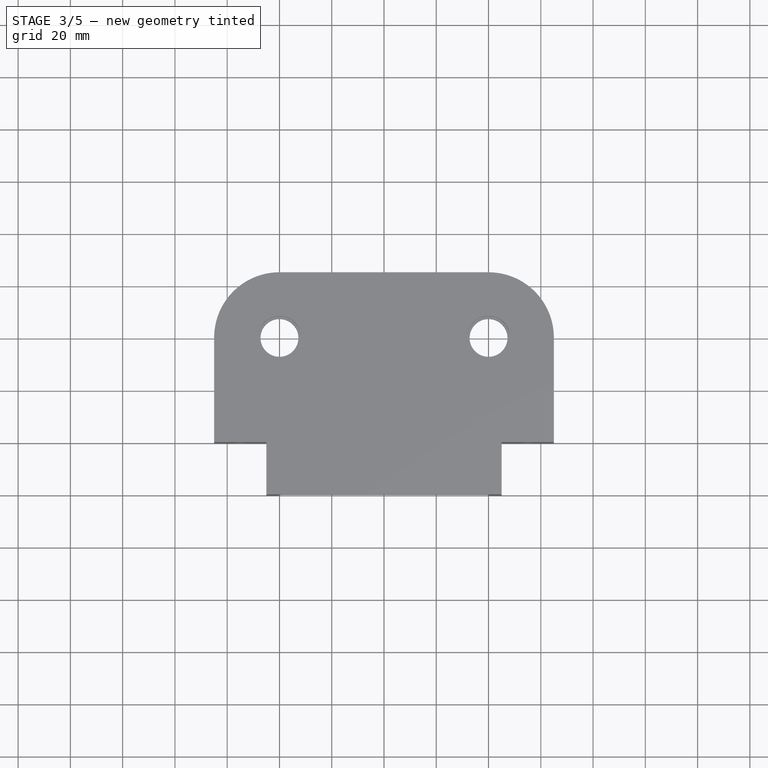
[diagram: stage 3 of 5 — top view after this stage's code; geometry added in this stage tinted green]
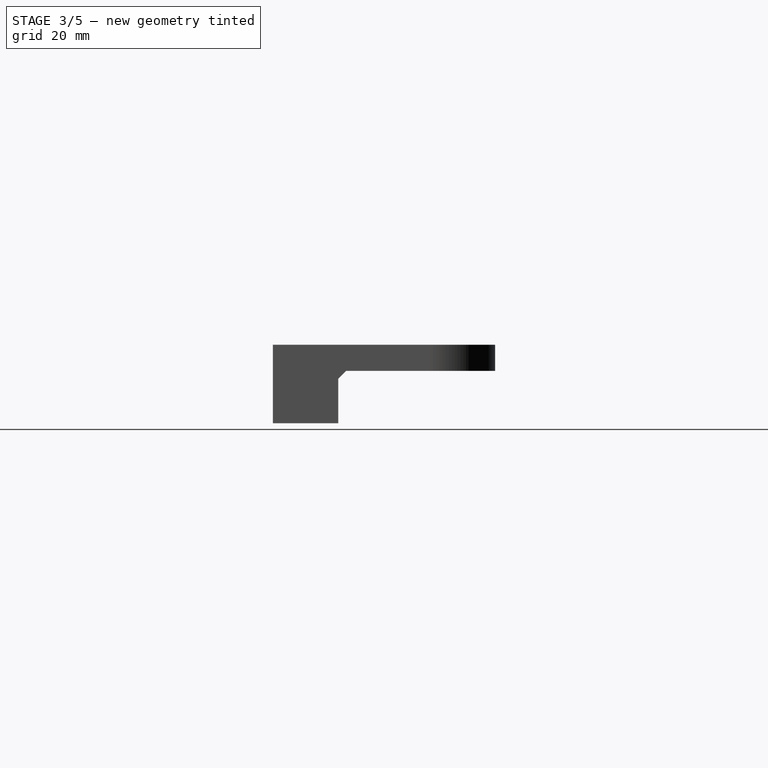
[diagram: stage 3 of 5 — right view after this stage's code; geometry added in this stage tinted green]
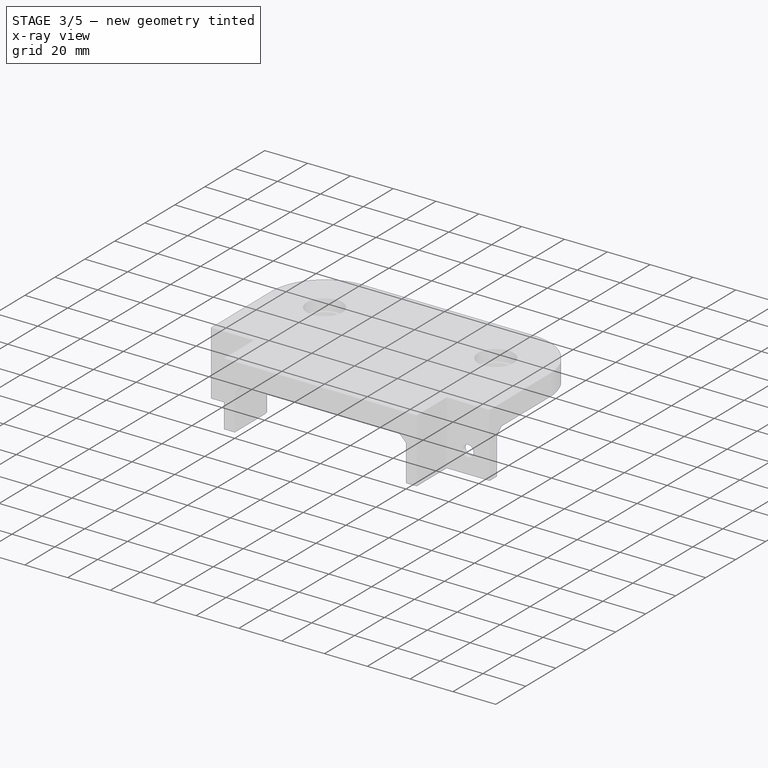
[diagram: stage 3 of 5 — x-ray composite at the iso view; earlier geometry ghosted, this stage's added geometry solid]
FEATURE [Sketcher::SketchObject] Sketch005
  ExternalGeometry = -> [Pad002]
  FullyConstrained = false
  MapMode = 5
  Support = -> [Pad002]
  sketch-geometry (2):
    g0: Circle CenterX=40 CenterY=0 CenterZ=0 NormalX=0 NormalY=0 NormalZ=1 AngleXU=0 Radius=8
    g1: Circle CenterX=-40 CenterY=-1.5e-15 CenterZ=0 NormalX=0 NormalY=0 NormalZ=1 AngleXU=0 Radius=8
  constraints (4):
    c: Coincident(g1,g-3)
    c: Diameter(g1) = 16
    c: Equal(g1,g0)
    c: Coincident(g0,g-5)
FEATURE [PartDesign::Hole] Hole001
  BaseFeature = -> Pad002
  Depth = 25
  DepthType = 0
  Diameter = 14.5
  DrillForDepth = false
  DrillPoint = 1
  DrillPointAngle = 118
  HoleCutCountersinkAngle = 90
  HoleCutCustomValues = false
  HoleCutDepth = 5.4
  HoleCutDiameter = 16.5
  HoleCutType = 1
  ModelActualThread = false
  Profile = -> Sketch005
  Tapered = false
  TaperedAngle = 90
  ThreadAngle = 0
  ThreadClass = 0
  ThreadCutOffInner = 0
  ThreadCutOffOuter = 0
  ThreadDirection = 0
  ThreadFit = 0
  ThreadPitch = 0
  ThreadSize = 0
  ThreadType = 0
  Threaded = false
FEATURE [Sketcher::SketchObject] Sketch006
  ExternalGeometry = -> [Hole001]
  FullyConstrained = false
  MapMode = 5
  Placement = pos=(0,0,-10) rot=(1,0,0;3.14159rad)
  Support = -> [Hole001]
  sketch-geometry (14):
    g0: LineSegment StartX=-65 StartY=40 StartZ=0 EndX=-65 EndY=35 EndZ=0
    g1: LineSegment StartX=-65 StartY=35 StartZ=0 EndX=-45 EndY=35 EndZ=0
    g2: LineSegment StartX=-40 StartY=40 StartZ=0 EndX=-40 EndY=60 EndZ=0
    g3: LineSegment StartX=-40 StartY=60 StartZ=0 EndX=-45 EndY=60 EndZ=0
    g4: LineSegment StartX=-45 StartY=60 StartZ=0 EndX=-45 EndY=40 EndZ=0
    g5: LineSegment StartX=-45 StartY=40 StartZ=0 EndX=-65 EndY=40 EndZ=0
    g6: LineSegment StartX=45 StartY=60 StartZ=0 EndX=40 EndY=60 EndZ=0
    g7: LineSegment StartX=40 StartY=60 StartZ=0 EndX=40 EndY=40 EndZ=0
    g8: LineSegment StartX=45 StartY=35 StartZ=0 EndX=65 EndY=35 EndZ=0
    g9: LineSegment StartX=65 StartY=35 StartZ=0 EndX=65 EndY=40 EndZ=0
    g10: LineSegment StartX=65 StartY=40 StartZ=0 EndX=45 EndY=40 EndZ=0
    g11: LineSegment StartX=45 StartY=40 StartZ=0 EndX=45 EndY=60 EndZ=0
    g12: ArcOfCircle CenterX=-45 CenterY=40 CenterZ=0 NormalX=0 NormalY=0 NormalZ=1 AngleXU=0 Radius=5 StartAngle=4.71239 EndAngle=6.28319
    g13: ArcOfCircle CenterX=45 CenterY=40 CenterZ=0 NormalX=0 NormalY=0 NormalZ=1 AngleXU=0 Radius=5 StartAngle=3.14159 EndAngle=4.71239
  constraints (32):
    c: Coincident(g-4,g0)
    c: Vertical(g0)
    c: Coincident(g0,g1)
    c: Horizontal(g1)
    c: Vertical(g2)
    c: Coincident(g2,g3)
    c: Coincident(g3,g-3)
    c: Coincident(g3,g4)
    c: Coincident(g4,g-4)
    c: Coincident(g4,g5)
    c: Coincident(g5,g0)
    c: Coincident(g-5,g6)
    c: Horizontal(g6)
    c: Coincident(g6,g7)
    c: Vertical(g7)
    c: Horizontal(g8)
    c: Coincident(g8,g9)
    c: Coincident(g9,g-6)
    c: Coincident(g9,g10)
    c: Coincident(g10,g-6)
    c: Coincident(g10,g11)
    c: Coincident(g11,g6)
    c: Vertical(g9)
    c: Horizontal(g3)
    c: Tangent(g1,g12) = -1.5708
    c: Tangent(g2,g12) = -1.5708
    c: Tangent(g7,g13) = -1.5708
    c: Tangent(g8,g13) = -1.5708
    c: Coincident(g10,g13)
    c: Coincident(g4,g12)
    c: Equal(g3,g6)
    c: DistanceX(g3,g3) = 5
FEATURE [PartDesign::Pad] Pad003
  BaseFeature = -> Hole001
  Direction = (1,1,1)
  Length = 20
  Length2 = 100
  Profile = -> Sketch006
  Type = 0
FEATURE [Sketcher::SketchObject] Sketch007
  ExternalGeometry = -> [Pad003]
  FullyConstrained = false
  MapMode = 5
  Placement = pos=(0,-35,0) rot=(0,0.707107,0.707107;3.14159rad)
  Support = -> [Pad003]
  sketch-geometry (9):
    g0: Circle CenterX=-55 CenterY=-20 CenterZ=0 NormalX=0 NormalY=0 NormalZ=1 AngleXU=0 Radius=5
    g1: Circle CenterX=55 CenterY=-20 CenterZ=0 NormalX=0 NormalY=0 NormalZ=1 AngleXU=0 Radius=5
    g2: LineSegment StartX=65 StartY=-10 StartZ=0 EndX=55 EndY=-20 EndZ=0
    g3: LineSegment StartX=55 StartY=-20 StartZ=0 EndX=65 EndY=-30 EndZ=0
    g4: LineSegment StartX=65 StartY=-30 StartZ=0 EndX=55 EndY=-20 EndZ=0
    g5: LineSegment StartX=55 StartY=-20 StartZ=0 EndX=45 EndY=-30 EndZ=0
    g6: LineSegment StartX=-45 StartY=-30 StartZ=0 EndX=-55 EndY=-20 EndZ=0
    g7: LineSegment StartX=-55 StartY=-20 StartZ=0 EndX=-65 EndY=-10 EndZ=0
    g8: LineSegment StartX=-65 StartY=-30 StartZ=0 EndX=-55 EndY=-20 EndZ=0
  constraints (20):
    c: Coincident(g-3,g2)
    c: Coincident(g2,g1)
    c: Coincident(g2,g3)
    c: Coincident(g3,g-4)
    c: Coincident(g3,g4)
    c: Coincident(g4,g1)
    c: Coincident(g4,g5)
    c: Coincident(g5,g-4)
    c: Coincident(g-5,g6)
    c: Coincident(g6,g0)
    c: Coincident(g6,g7)
    c: Coincident(g7,g-6)
    c: Coincident(g-6,g8)
    c: Coincident(g8,g0)
    c: Equal(g6,g8)
    c: Equal(g8,g7)
    c: Equal(g5,g3)
    c: Equal(g3,g2)
    c: Equal(g1,g0)
    c: Diameter(g0) = 10
FEATURE [PartDesign::Hole] Hole002
  BaseFeature = -> Pad003
  Depth = 25
  DepthType = 0
  Diameter = 5.2
  DrillForDepth = false
  DrillPoint = 1
  DrillPointAngle = 118
  HoleCutCountersinkAngle = 90
  HoleCutCustomValues = false
  HoleCutDepth = 0.4
  HoleCutDiameter = 11
  HoleCutType = 2
  ModelActualThread = false
  Profile = -> Sketch007
  Tapered = false
  TaperedAngle = 90
  ThreadAngle = 0
  ThreadClass = 0
  ThreadCutOffInner = 0
  ThreadCutOffOuter = 0
  ThreadDirection = 0
  ThreadFit = 0
  ThreadPitch = 0
  ThreadSize = 0
  ThreadType = 0
  Threaded = false
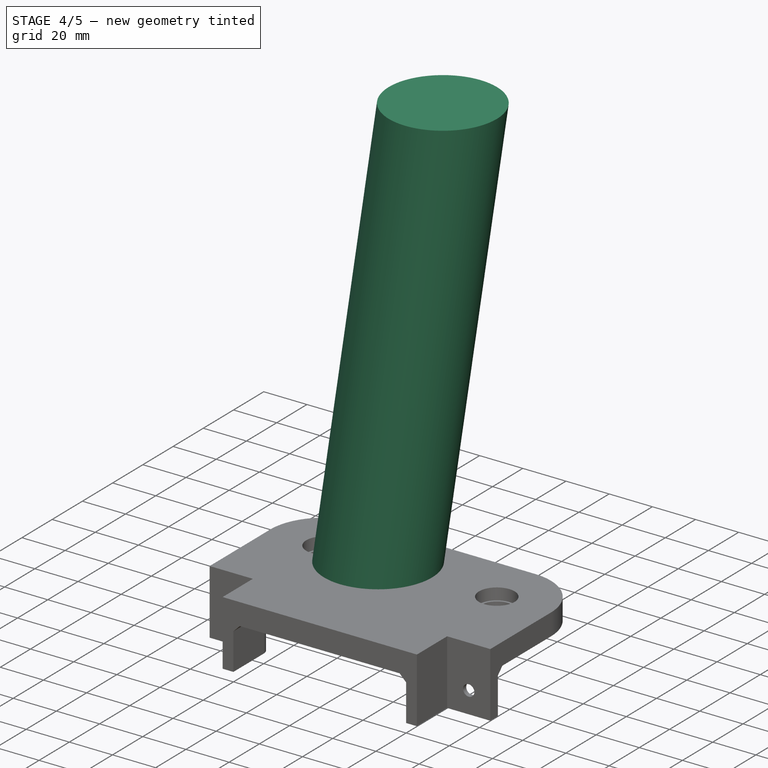
[diagram: stage 4 of 5 — iso view after this stage's code; geometry added in this stage tinted green]
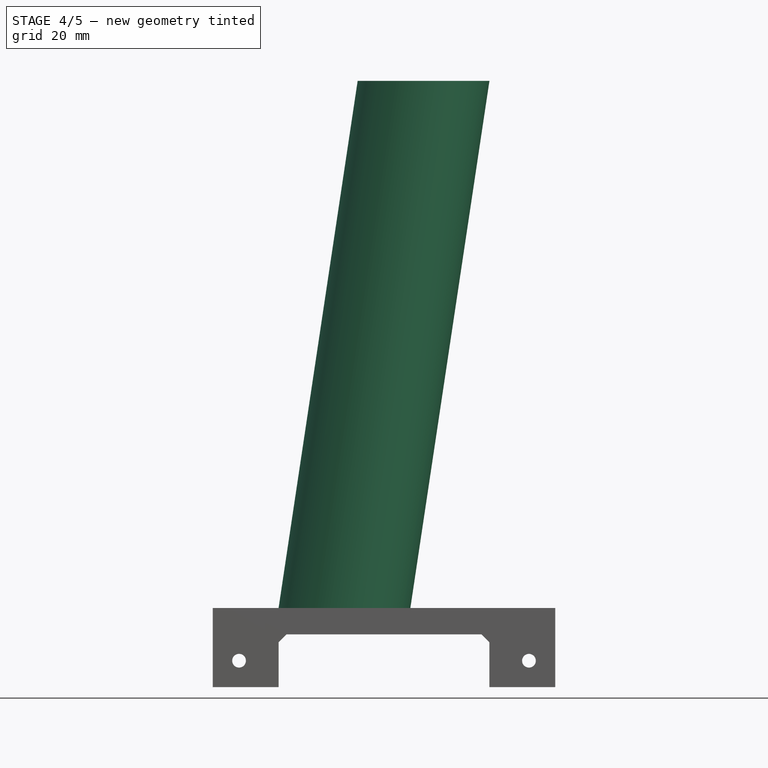
[diagram: stage 4 of 5 — front view after this stage's code; geometry added in this stage tinted green]
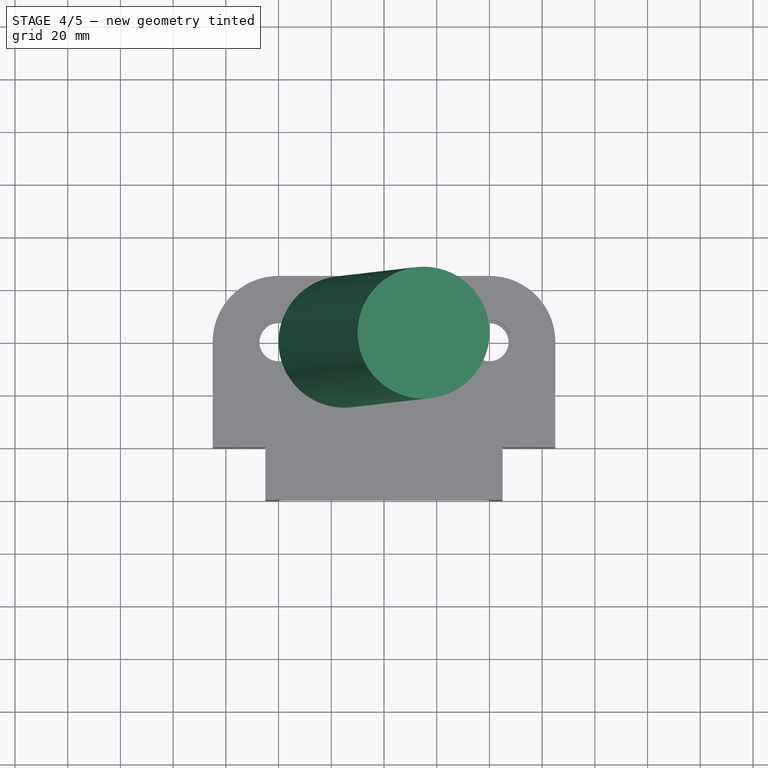
[diagram: stage 4 of 5 — top view after this stage's code; geometry added in this stage tinted green]
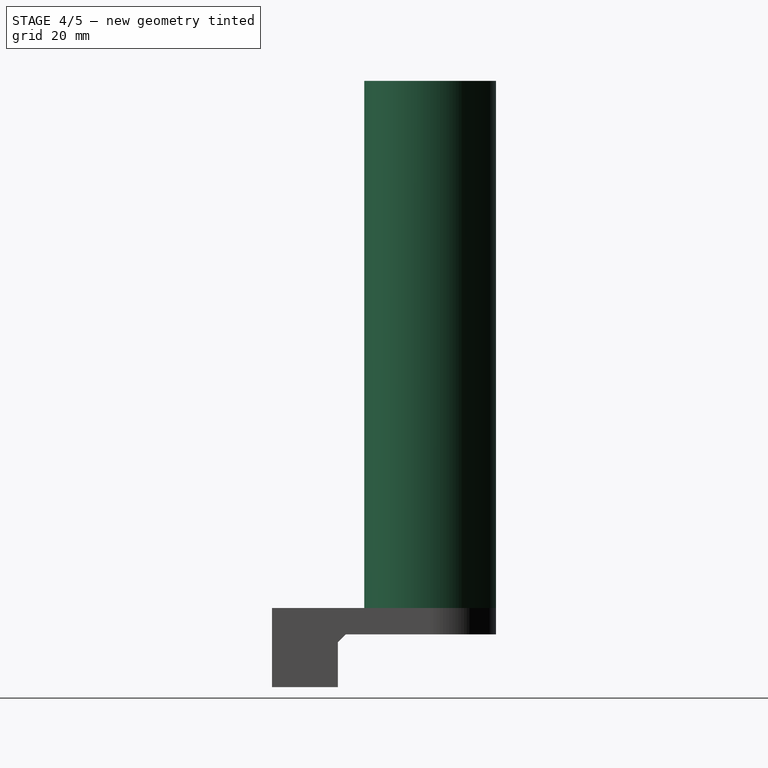
[diagram: stage 4 of 5 — right view after this stage's code; geometry added in this stage tinted green]
FEATURE [Sketcher::SketchObject] Sketch
  FullyConstrained = false
  MapMode = 5
  Support = -> [XY_Plane]
  sketch-geometry (1):
    g0: Circle CenterX=-15 CenterY=0 CenterZ=0 NormalX=0 NormalY=0 NormalZ=1 AngleXU=0 Radius=25
  constraints (3):
    c: PointOnObject(g0,g-1)
    c: Diameter(g0) = 50
    c: DistanceX(g0,g-1) = 15
FEATURE [PartDesign::Pad] Pad
  Direction = (3,0,20)
  Length = 200
  Length2 = 100
  Profile = -> Sketch
  Type = 0
  UseCustomVector = true
FEATURE [Sketcher::SketchObject] Sketch002
  FullyConstrained = false
  MapMode = 5
  Placement = pos=(0,0,0) rot=(0,1,0;3.14159rad)
  Support = -> [XY_Plane001]
  sketch-geometry (14):
    g0: Circle CenterX=40 CenterY=-1.5e-15 CenterZ=0 NormalX=0 NormalY=0 NormalZ=1 AngleXU=0 Radius=8
    g1: LineSegment StartX=-40 StartY=25 StartZ=0 EndX=40 EndY=25 EndZ=0
    g2: LineSegment StartX=65 StartY=-1.5e-15 StartZ=0 EndX=65 EndY=-40 EndZ=0
    g3: LineSegment StartX=-65 StartY=-40 StartZ=0 EndX=-65 EndY=7.603e-13 EndZ=0
    g4: Circle CenterX=-40 CenterY=0 CenterZ=0 NormalX=0 NormalY=0 NormalZ=1 AngleXU=0 Radius=8
    g5: ArcOfCircle CenterX=-40 CenterY=0 CenterZ=0 NormalX=0 NormalY=0 NormalZ=1 AngleXU=0 Radius=25 StartAngle=1.5708 EndAngle=3.14159
    g6: ArcOfCircle CenterX=40 CenterY=-1.5e-15 CenterZ=0 NormalX=0 NormalY=0 NormalZ=1 AngleXU=0 Radius=25 StartAngle=0 EndAngle=1.5708
    g7: LineSegment StartX=-65 StartY=-40 StartZ=0 EndX=0 EndY=0 EndZ=0
    g8: LineSegment StartX=0 StartY=0 StartZ=0 EndX=65 EndY=-40 EndZ=0
    g9: LineSegment StartX=-65 StartY=-40 StartZ=0 EndX=-45 EndY=-40 EndZ=0
    g10: LineSegment StartX=-45 StartY=-40 StartZ=0 EndX=-45 EndY=-60 EndZ=0
    g11: LineSegment StartX=-45 StartY=-60 StartZ=0 EndX=45 EndY=-60 EndZ=0
    g12: LineSegment StartX=45 StartY=-60 StartZ=0 EndX=45 EndY=-40 EndZ=0
    g13: LineSegment StartX=45 StartY=-40 StartZ=0 EndX=65 EndY=-40 EndZ=0
  constraints (36):
    c: Horizontal(g1)
    c: Vertical(g2)
    c: Vertical(g3)
    c: PointOnObject(g4,g-1)
    c: Tangent(g1,g5) = 1.5708
    c: Tangent(g3,g5) = 1.5708
    c: Tangent(g2,g6) = 1.5708
    c: Diameter(g4) = 16
    c: Equal(g4,g0)
    c: Coincident(g5,g4)
    c: Coincident(g6,g0)
    c: Equal(g5,g6)
    c: Diameter(g6) = 50
    c: DistanceX(g4,g0) = 80
    c: Tangent(g6,g1) = 1.5708
    c: Coincident(g7,g-1)
    c: Coincident(g7,g8)
    c: Coincident(g8,g2)
    c: Equal(g8,g7)
    c: DistanceY(g3,g3) = 40
    c: Coincident(g3,g9)
    c: Horizontal(g9)
    c: Coincident(g9,g10)
    c: Vertical(g10)
    c: Coincident(g10,g11)
    c: Horizontal(g11)
    c: Coincident(g11,g12)
    c: Vertical(g12)
    c: Coincident(g12,g13)
    c: Coincident(g13,g2)
    c: Horizontal(g13)
    c: Equal(g13,g12)
    c: Equal(g12,g10)
    c: Equal(g10,g9)
    c: Coincident(g7,g3)
    c: DistanceY(g10,g10) = 20
FEATURE [PartDesign::Pad] Pad001
  Direction = (1,1,1)
  Length = 10
  Length2 = 100
  Profile = -> Sketch002
  Type = 0
FEATURE [PartDesign::Body] Body002
  BaseFeature = -> Body
  Group = -> [Clone]
  Origin = -> Origin002
  Placement = pos=(40,0,10) rot=(0,0,1;0rad)
  Tip = -> Clone
FEATURE [Sketcher::SketchObject] Sketch003
  ExternalGeometry = -> [Pad001]
  FullyConstrained = false
  MapMode = 5
  Support = -> [Pad001]
  sketch-geometry (2):
    g0: Circle CenterX=40 CenterY=0 CenterZ=0 NormalX=0 NormalY=0 NormalZ=1 AngleXU=0 Radius=8
    g1: Circle CenterX=-40 CenterY=-1.5e-15 CenterZ=0 NormalX=0 NormalY=0 NormalZ=1 AngleXU=0 Radius=8
  constraints (4):
    c: Coincident(g1,g-3)
    c: Diameter(g1) = 16
    c: Equal(g1,g0)
    c: Coincident(g0,g-5)
FEATURE [PartDesign::Hole] Hole
  BaseFeature = -> Pad001
  Depth = 25
  DepthType = 0
  Diameter = 14.5
  DrillForDepth = false
  DrillPoint = 1
  DrillPointAngle = 118
  HoleCutCountersinkAngle = 90
  HoleCutCustomValues = false
  HoleCutDepth = 5.4
  HoleCutDiameter = 16.5
  HoleCutType = 1
  ModelActualThread = false
  Profile = -> Sketch003
  Tapered = false
  TaperedAngle = 90
  ThreadAngle = 0
  ThreadClass = 0
  ThreadCutOffInner = 0
  ThreadCutOffOuter = 0
  ThreadDirection = 0
  ThreadFit = 0
  ThreadPitch = 0
  ThreadSize = 0
  ThreadType = 0
  Threaded = false
FEATURE [PartDesign::Chamfer] Chamfer001
  Angle = 45
  Base = -> Hole002 [Edge25,Edge29]
  BaseFeature = -> Hole002
  ChamferType = 0
  FlipDirection = false
  Size = 3
  Size2 = 1
  SupportTransform = false
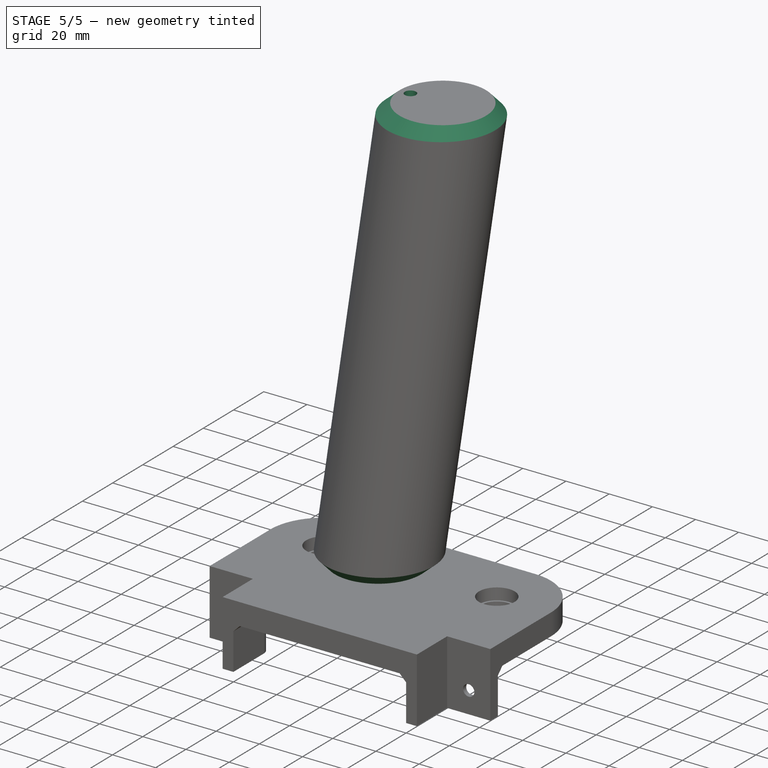
[diagram: stage 5 of 5 — iso view after this stage's code; geometry added in this stage tinted green]
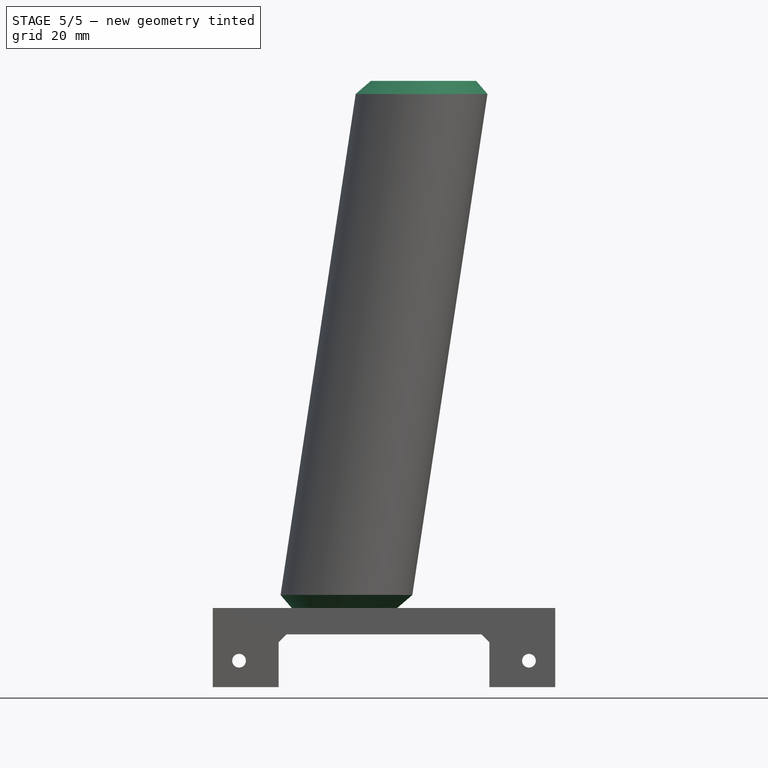
[diagram: stage 5 of 5 — front view after this stage's code; geometry added in this stage tinted green]
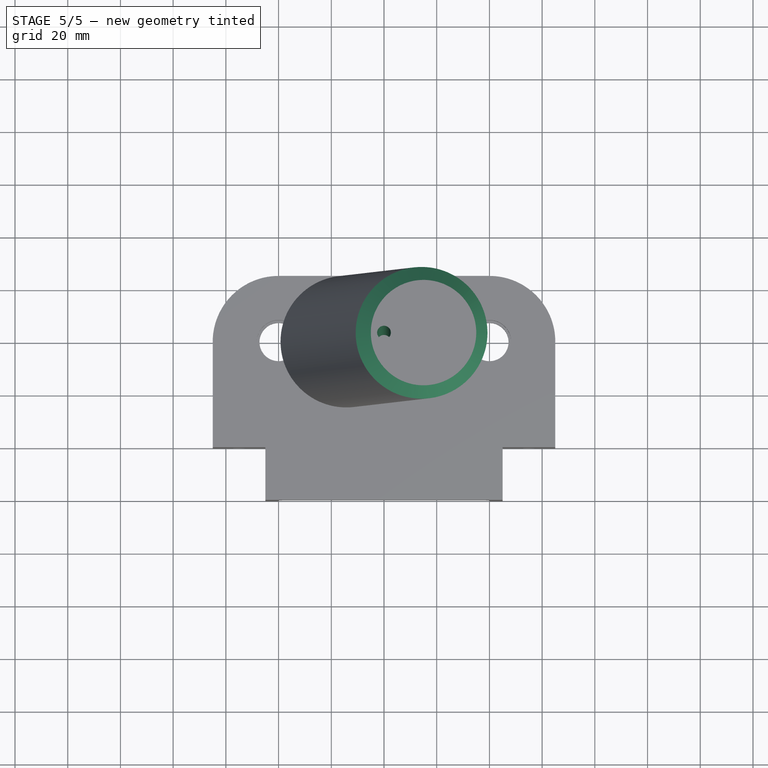
[diagram: stage 5 of 5 — top view after this stage's code; geometry added in this stage tinted green]
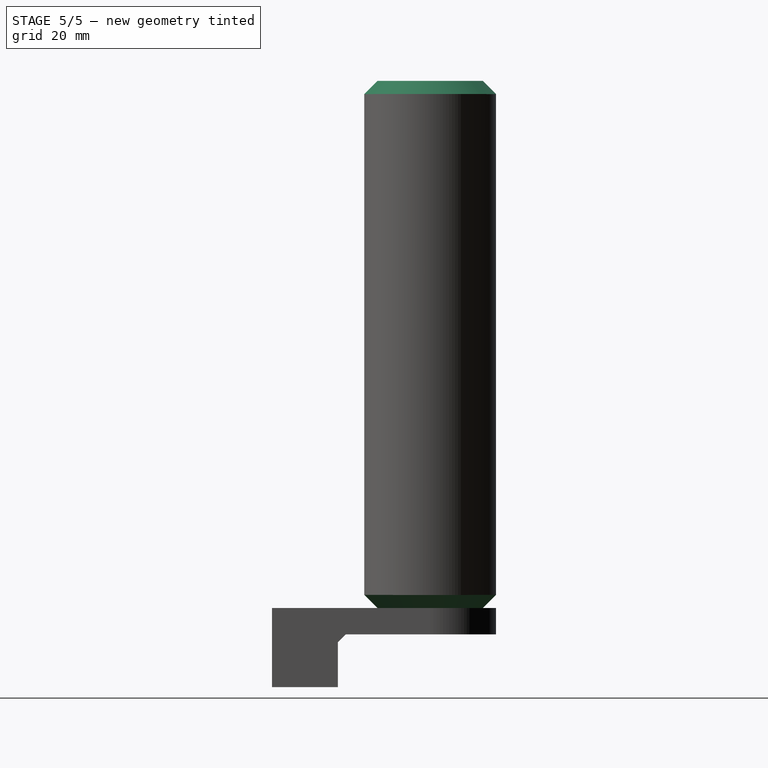
[diagram: stage 5 of 5 — right view after this stage's code; geometry added in this stage tinted green]
FEATURE [Sketcher::SketchObject] Sketch001
  FullyConstrained = false
  MapMode = 5
  Placement = pos=(0,0,0) rot=(0,1,0;3.14159rad)
  Support = -> [XY_Plane]
  sketch-geometry (1):
    g0: Circle CenterX=0 CenterY=0 CenterZ=0 NormalX=0 NormalY=0 NormalZ=1 AngleXU=0 Radius=2.6
  constraints (2):
    c: Coincident(g0,g-1)
    c: Diameter(g0) = 5.2
FEATURE [PartDesign::Pocket] Pocket
  BaseFeature = -> Pad
  Length = 5
  Length2 = 100
  Profile = -> Sketch001
  Type = 1
FEATURE [PartDesign::Chamfer] Chamfer
  Angle = 45
  Base = -> Pocket [Edge2,Edge3]
  BaseFeature = -> Pocket
  ChamferType = 0
  FlipDirection = false
  Size = 5
  Size2 = 1
  SupportTransform = false
FEATURE [PartDesign::Body] Body
  Group = -> [Sketch,Pad,Sketch001,Pocket,Chamfer]
  Origin = -> Origin
  Placement = pos=(-40,0,10) rot=(0,0,1;0rad)
  Tip = -> Chamfer
FEATURE [PartDesign::FeatureBase] Clone
  BaseFeature = -> Body
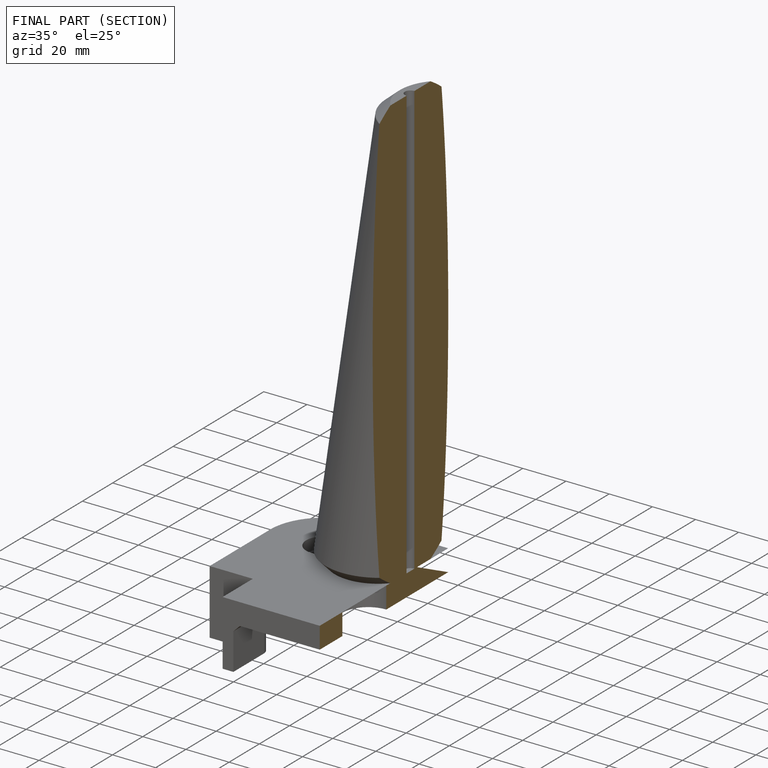
[diagram: finished part — half-section view (interior)]
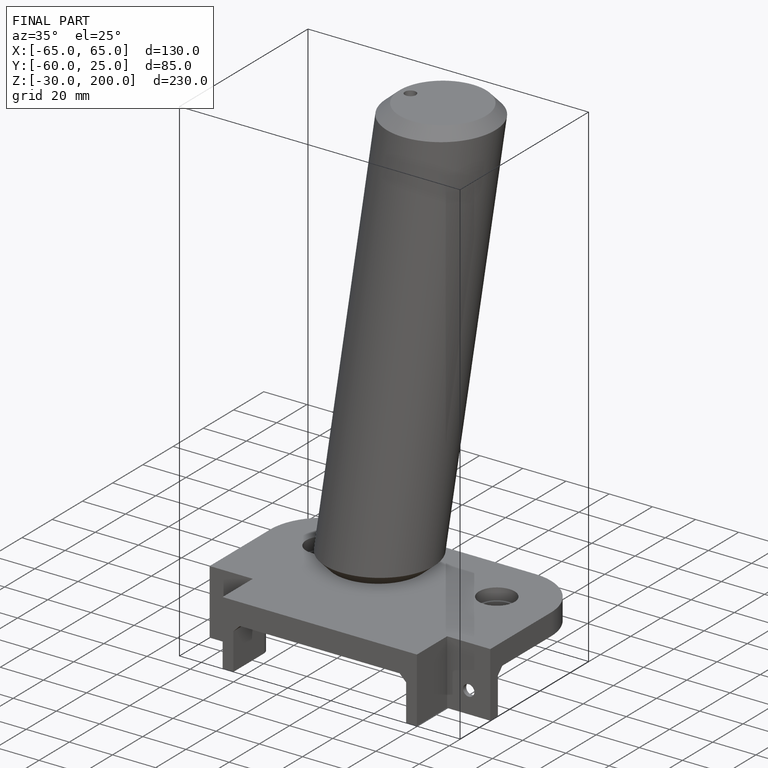
[diagram: finished part — iso view with bounding-box wireframe]
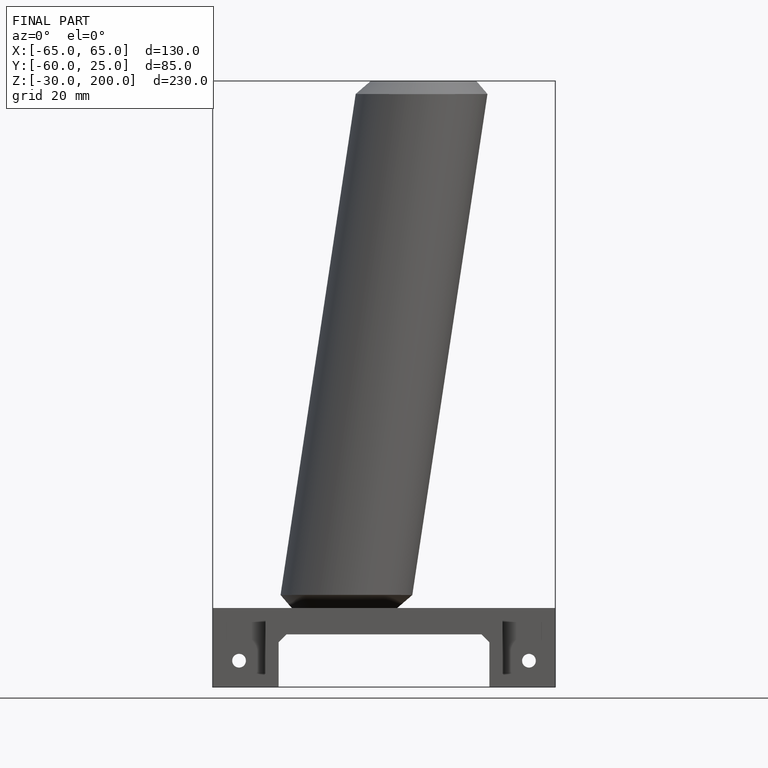
[diagram: finished part — front view with bounding-box wireframe]
